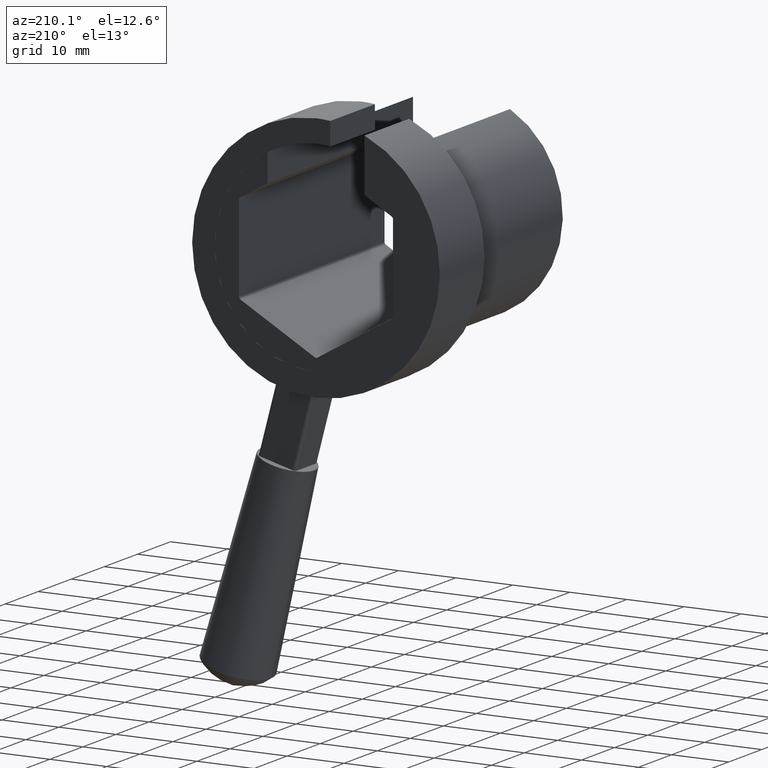
[diagram: clean part render]
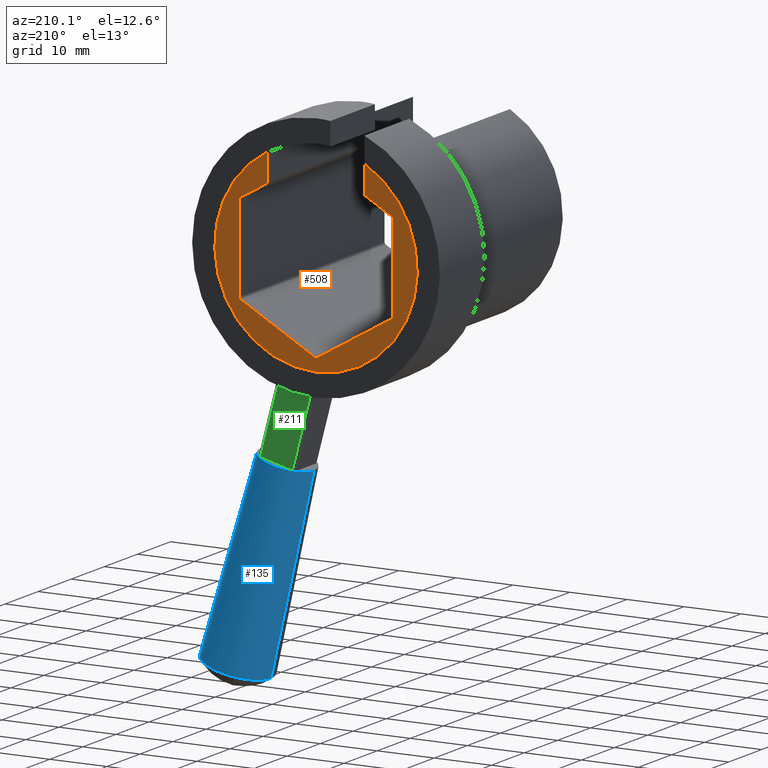
[diagram: same view with three faces highlighted in distinct colors, each labeled with its STEP entity id]
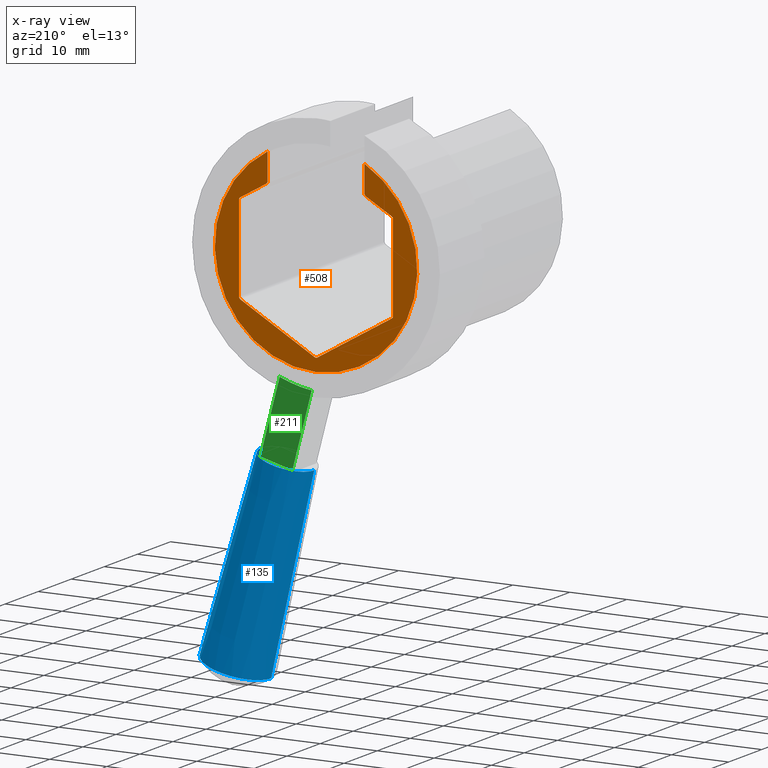
[diagram: x-ray of the same camera — body ghosted, the three highlighted faces saturated]
A machine part, auxiliary view with three faces highlighted in distinct colors.
The next image is the same camera in x-ray (body ghosted, the three faces saturated) — at least one of them is partly hidden behind the body in this view.
Their STEP definitions:

[orange] entity #508 — the highlighted planar face has unit normal (0, 1, 0).
#6 = VERTEX_POINT ( 'NONE', #386 ) ;
#15 = EDGE_CURVE ( 'NONE', #17, #6, #327, .T. ) ;
#17 = VERTEX_POINT ( 'NONE', #322 ) ;
#107 = EDGE_CURVE ( 'NONE', #108, #17, #651, .T. ) ;
#108 = VERTEX_POINT ( 'NONE', #646 ) ;
#288 = EDGE_CURVE ( 'NONE', #289, #108, #816, .T. ) ;
#289 = VERTEX_POINT ( 'NONE', #812 ) ;
#294 = EDGE_CURVE ( 'NONE', #487, #295, #847, .T. ) ;
#295 = VERTEX_POINT ( 'NONE', #842 ) ;
#296 = ORIENTED_EDGE ( 'NONE', *, *, #297, .T. ) ;
#297 = EDGE_CURVE ( 'NONE', #295, #298, #841, .T. ) ;
#298 = VERTEX_POINT ( 'NONE', #869 ) ;
#299 = ORIENTED_EDGE ( 'NONE', *, *, #300, .T. ) ;
#300 = EDGE_CURVE ( 'NONE', #298, #301, #868, .T. ) ;
#301 = VERTEX_POINT ( 'NONE', #863 ) ;
#302 = ORIENTED_EDGE ( 'NONE', *, *, #303, .T. ) ;
#303 = EDGE_CURVE ( 'NONE', #301, #468, #862, .T. ) ;
#322 = CARTESIAN_POINT ( 'NONE',  ( 0.0000000000000000000, 44.00000000000000000, -17.75000000000000000 ) ) ;
#323 = DIRECTION ( 'NONE',  ( 0.0000000000000000000, 0.0000000000000000000, 1.000000000000000000 ) ) ;
#324 = DIRECTION ( 'NONE',  ( 0.0000000000000000000, 1.000000000000000000, 0.0000000000000000000 ) ) ;
#325 = CARTESIAN_POINT ( 'NONE',  ( 0.0000000000000000000, 44.00000000000000000, 0.0000000000000000000 ) ) ;
#326 = AXIS2_PLACEMENT_3D ( 'NONE', #325, #324, #323 ) ;
#327 = CIRCLE ( 'NONE', #326, 17.75000000000000000 ) ;
#360 = EDGE_CURVE ( 'NONE', #522, #361, #1146, .T. ) ;
#361 = VERTEX_POINT ( 'NONE', #1052 ) ;
#362 = ORIENTED_EDGE ( 'NONE', *, *, #363, .T. ) ;
#363 = EDGE_CURVE ( 'NONE', #361, #373, #1141, .T. ) ;
#373 = VERTEX_POINT ( 'NONE', #1039 ) ;
#374 = ORIENTED_EDGE ( 'NONE', *, *, #375, .T. ) ;
#375 = EDGE_CURVE ( 'NONE', #373, #487, #1046, .T. ) ;
#386 = CARTESIAN_POINT ( 'NONE',  ( -8.499999999999998200, 44.00000000000000000, 15.58244204224742000 ) ) ;
#450 = ORIENTED_EDGE ( 'NONE', *, *, #451, .T. ) ;
#451 = EDGE_CURVE ( 'NONE', #471, #452, #1166, .T. ) ;
#452 = VERTEX_POINT ( 'NONE', #1162 ) ;
#453 = ORIENTED_EDGE ( 'NONE', *, *, #454, .T. ) ;
#454 = EDGE_CURVE ( 'NONE', #452, #512, #1161, .T. ) ;
#468 = VERTEX_POINT ( 'NONE', #1261 ) ;
#469 = ORIENTED_EDGE ( 'NONE', *, *, #470, .T. ) ;
#470 = EDGE_CURVE ( 'NONE', #468, #471, #1283, .T. ) ;
#471 = VERTEX_POINT ( 'NONE', #1215 ) ;
#487 = VERTEX_POINT ( 'NONE', #1282 ) ;
#488 = ORIENTED_EDGE ( 'NONE', *, *, #294, .T. ) ;
#491 = VERTEX_POINT ( 'NONE', #1250 ) ;
#494 = EDGE_CURVE ( 'NONE', #6, #491, #1249, .T. ) ;
#508 = ADVANCED_FACE ( 'NONE', ( #1229 ), #1228, .T. ) ;
#509 = EDGE_LOOP ( 'NONE', ( #510, #514, #516, #517, #518, #519, #520, #523, #362, #374, #488, #296, #299, #302, #469, #450, #453 ) ) ;
#510 = ORIENTED_EDGE ( 'NONE', *, *, #511, .T. ) ;
#511 = EDGE_CURVE ( 'NONE', #512, #513, #1324, .T. ) ;
#512 = VERTEX_POINT ( 'NONE', #1320 ) ;
#513 = VERTEX_POINT ( 'NONE', #1319 ) ;
#514 = ORIENTED_EDGE ( 'NONE', *, *, #515, .T. ) ;
#515 = EDGE_CURVE ( 'NONE', #513, #289, #1318, .T. ) ;
#516 = ORIENTED_EDGE ( 'NONE', *, *, #288, .T. ) ;
#517 = ORIENTED_EDGE ( 'NONE', *, *, #107, .T. ) ;
#518 = ORIENTED_EDGE ( 'NONE', *, *, #15, .T. ) ;
#519 = ORIENTED_EDGE ( 'NONE', *, *, #494, .T. ) ;
#520 = ORIENTED_EDGE ( 'NONE', *, *, #521, .T. ) ;
#521 = EDGE_CURVE ( 'NONE', #491, #522, #1340, .T. ) ;
#522 = VERTEX_POINT ( 'NONE', #1335 ) ;
#523 = ORIENTED_EDGE ( 'NONE', *, *, #360, .T. ) ;
#646 = CARTESIAN_POINT ( 'NONE',  ( 8.499999999999998200, 44.00000000000000000, 15.58244204224742000 ) ) ;
#647 = DIRECTION ( 'NONE',  ( 0.0000000000000000000, 0.0000000000000000000, 1.000000000000000000 ) ) ;
#648 = DIRECTION ( 'NONE',  ( 0.0000000000000000000, 1.000000000000000000, 0.0000000000000000000 ) ) ;
#649 = CARTESIAN_POINT ( 'NONE',  ( 0.0000000000000000000, 44.00000000000000000, 0.0000000000000000000 ) ) ;
#650 = AXIS2_PLACEMENT_3D ( 'NONE', #649, #648, #647 ) ;
#651 = CIRCLE ( 'NONE', #650, 17.75000000000000000 ) ;
#812 = CARTESIAN_POINT ( 'NONE',  ( 8.500000000000000000, 44.00000000000000000, 10.96965511460289600 ) ) ;
#813 = DIRECTION ( 'NONE',  ( -3.405188617868360800E-016, 0.0000000000000000000, 1.000000000000000000 ) ) ;
#814 = VECTOR ( 'NONE', #813, 1000.000000000000000 ) ;
#815 = CARTESIAN_POINT ( 'NONE',  ( 8.500000000000000000, 44.00000000000000000, 10.48808848170151500 ) ) ;
#816 = LINE ( 'NONE', #815, #814 ) ;
#841 = LINE ( 'NONE', #872, #871 ) ;
#842 = CARTESIAN_POINT ( 'NONE',  ( -13.25000000000000200, 44.00000000000000000, -7.938566201357353700 ) ) ;
#843 = DIRECTION ( 'NONE',  ( 0.0000000000000000000, 0.0000000000000000000, 1.000000000000000000 ) ) ;
#844 = DIRECTION ( 'NONE',  ( 0.0000000000000000000, -1.000000000000000000, 0.0000000000000000000 ) ) ;
#845 = CARTESIAN_POINT ( 'NONE',  ( -13.00000000000000200, 44.00000000000000000, -7.505553499465134100 ) ) ;
#846 = AXIS2_PLACEMENT_3D ( 'NONE', #845, #844, #843 ) ;
#847 = CIRCLE ( 'NONE', #846, 0.5000000000000004400 ) ;
#859 = DIRECTION ( 'NONE',  ( 0.8660254037844384900, 0.0000000000000000000, 0.5000000000000002200 ) ) ;
#860 = VECTOR ( 'NONE', #859, 1000.000000000000100 ) ;
#861 = CARTESIAN_POINT ( 'NONE',  ( -2.823115543930596100E-015, 44.00000000000000000, -15.58845726811989600 ) ) ;
#862 = LINE ( 'NONE', #861, #860 ) ;
#863 = CARTESIAN_POINT ( 'NONE',  ( 0.2499999999999977200, 44.00000000000000000, -15.44411970082249000 ) ) ;
#864 = DIRECTION ( 'NONE',  ( 7.105427357600995500E-015, 0.0000000000000000000, 1.000000000000000000 ) ) ;
#865 = DIRECTION ( 'NONE',  ( 0.0000000000000000000, -1.000000000000000000, 0.0000000000000000000 ) ) ;
#866 = CARTESIAN_POINT ( 'NONE',  ( -1.951563910473908000E-015, 44.00000000000000000, -15.01110699893027000 ) ) ;
#867 = AXIS2_PLACEMENT_3D ( 'NONE', #866, #865, #864 ) ;
#868 = CIRCLE ( 'NONE', #867, 0.5000000000000004400 ) ;
#869 = CARTESIAN_POINT ( 'NONE',  ( -0.2500000000000002200, 44.00000000000000000, -15.44411970082249000 ) ) ;
#870 = DIRECTION ( 'NONE',  ( 0.8660254037844386000, 0.0000000000000000000, -0.5000000000000001100 ) ) ;
#871 = VECTOR ( 'NONE', #870, 1000.000000000000000 ) ;
#872 = CARTESIAN_POINT ( 'NONE',  ( -13.50000000000000200, 44.00000000000000000, -7.794228634059947100 ) ) ;
#1036 = DIRECTION ( 'NONE',  ( 0.0000000000000000000, 0.0000000000000000000, 1.000000000000000000 ) ) ;
#1037 = DIRECTION ( 'NONE',  ( 0.0000000000000000000, -1.000000000000000000, 0.0000000000000000000 ) ) ;
#1038 = CARTESIAN_POINT ( 'NONE',  ( -13.00000000000000200, 44.00000000000000000, 7.505553499465138500 ) ) ;
#1039 = CARTESIAN_POINT ( 'NONE',  ( -13.50000000000000200, 44.00000000000000000, 7.505553499465138500 ) ) ;
#1044 = DIRECTION ( 'NONE',  ( 0.0000000000000000000, 0.0000000000000000000, -1.000000000000000000 ) ) ;
#1045 = CARTESIAN_POINT ( 'NONE',  ( -13.50000000000000200, 44.00000000000000000, 7.794228634059950700 ) ) ;
#1046 = LINE ( 'NONE', #1045, #1150 ) ;
#1047 = DIRECTION ( 'NONE',  ( -0.8660254037844386000, 0.0000000000000000000, -0.5000000000000001100 ) ) ;
#1052 = CARTESIAN_POINT ( 'NONE',  ( -13.25000000000000400, 44.00000000000000000, 7.938566201357355500 ) ) ;
#1083 = DIRECTION ( 'NONE',  ( 0.0000000000000000000, 0.0000000000000000000, 1.000000000000000000 ) ) ;
#1084 = DIRECTION ( 'NONE',  ( 0.0000000000000000000, -1.000000000000000000, 0.0000000000000000000 ) ) ;
#1085 = CARTESIAN_POINT ( 'NONE',  ( 12.99999999999999600, 44.00000000000000000, 7.505553499465142900 ) ) ;
#1098 = CARTESIAN_POINT ( 'NONE',  ( 1.791772253212694700E-015, 44.00000000000000000, 15.58845726811990100 ) ) ;
#1099 = VECTOR ( 'NONE', #1047, 1000.000000000000100 ) ;
#1140 = AXIS2_PLACEMENT_3D ( 'NONE', #1038, #1037, #1036 ) ;
#1141 = CIRCLE ( 'NONE', #1140, 0.4999999999999995600 ) ;
#1146 = LINE ( 'NONE', #1098, #1099 ) ;
#1150 = VECTOR ( 'NONE', #1044, 1000.000000000000000 ) ;
#1160 = AXIS2_PLACEMENT_3D ( 'NONE', #1085, #1084, #1083 ) ;
#1161 = CIRCLE ( 'NONE', #1160, 0.5000000000000004400 ) ;
#1162 = CARTESIAN_POINT ( 'NONE',  ( 13.49999999999999600, 44.00000000000000000, 7.505553499465138500 ) ) ;
#1163 = DIRECTION ( 'NONE',  ( -1.112825628694192100E-016, 0.0000000000000000000, 1.000000000000000000 ) ) ;
#1164 = VECTOR ( 'NONE', #1163, 1000.000000000000000 ) ;
#1165 = CARTESIAN_POINT ( 'NONE',  ( 13.49999999999999800, 44.00000000000000000, -7.794228634059942700 ) ) ;
#1166 = LINE ( 'NONE', #1165, #1164 ) ;
#1214 = AXIS2_PLACEMENT_3D ( 'NONE', #1218, #1217, #1216 ) ;
#1215 = CARTESIAN_POINT ( 'NONE',  ( 13.49999999999999800, 44.00000000000000000, -7.505553499465129600 ) ) ;
#1216 = DIRECTION ( 'NONE',  ( 0.0000000000000000000, 0.0000000000000000000, 1.000000000000000000 ) ) ;
#1217 = DIRECTION ( 'NONE',  ( 0.0000000000000000000, -1.000000000000000000, 0.0000000000000000000 ) ) ;
#1218 = CARTESIAN_POINT ( 'NONE',  ( 12.99999999999999800, 44.00000000000000000, -7.505553499465129600 ) ) ;
#1224 = DIRECTION ( 'NONE',  ( 0.0000000000000000000, 0.0000000000000000000, 1.000000000000000000 ) ) ;
#1225 = DIRECTION ( 'NONE',  ( 0.0000000000000000000, 1.000000000000000000, 0.0000000000000000000 ) ) ;
#1226 = CARTESIAN_POINT ( 'NONE',  ( 0.0000000000000000000, 44.00000000000000000, 0.0000000000000000000 ) ) ;
#1227 = AXIS2_PLACEMENT_3D ( 'NONE', #1226, #1225, #1224 ) ;
#1228 = PLANE ( 'NONE',  #1227 ) ;
#1229 = FACE_OUTER_BOUND ( 'NONE', #509, .T. ) ;
#1246 = DIRECTION ( 'NONE',  ( -3.405188617868360800E-016, 0.0000000000000000000, -1.000000000000000000 ) ) ;
#1247 = VECTOR ( 'NONE', #1246, 1000.000000000000000 ) ;
#1248 = CARTESIAN_POINT ( 'NONE',  ( -8.500000000000000000, 44.00000000000000000, 10.48808848170151500 ) ) ;
#1249 = LINE ( 'NONE', #1248, #1247 ) ;
#1250 = CARTESIAN_POINT ( 'NONE',  ( -8.500000000000000000, 44.00000000000000000, 10.96965511460289400 ) ) ;
#1261 = CARTESIAN_POINT ( 'NONE',  ( 13.25000000000000000, 44.00000000000000000, -7.938566201357348400 ) ) ;
#1282 = CARTESIAN_POINT ( 'NONE',  ( -13.50000000000000200, 44.00000000000000000, -7.505553499465130500 ) ) ;
#1283 = CIRCLE ( 'NONE', #1214, 0.4999999999999995600 ) ;
#1314 = DIRECTION ( 'NONE',  ( 0.0000000000000000000, 0.0000000000000000000, 1.000000000000000000 ) ) ;
#1315 = DIRECTION ( 'NONE',  ( 0.0000000000000000000, 1.000000000000000000, 0.0000000000000000000 ) ) ;
#1316 = CARTESIAN_POINT ( 'NONE',  ( 9.000000000000001800, 44.00000000000000000, 10.96965511460289600 ) ) ;
#1317 = AXIS2_PLACEMENT_3D ( 'NONE', #1316, #1315, #1314 ) ;
#1318 = CIRCLE ( 'NONE', #1317, 0.5000000000000004400 ) ;
#1319 = CARTESIAN_POINT ( 'NONE',  ( 8.750000000000000000, 44.00000000000000000, 10.53664241271067700 ) ) ;
#1320 = CARTESIAN_POINT ( 'NONE',  ( 13.24999999999999600, 44.00000000000000000, 7.938566201357362600 ) ) ;
#1321 = DIRECTION ( 'NONE',  ( -0.8660254037844386000, 0.0000000000000000000, 0.5000000000000001100 ) ) ;
#1322 = VECTOR ( 'NONE', #1321, 1000.000000000000100 ) ;
#1323 = CARTESIAN_POINT ( 'NONE',  ( 13.49999999999999600, 44.00000000000000000, 7.794228634059956000 ) ) ;
#1324 = LINE ( 'NONE', #1323, #1322 ) ;
#1335 = CARTESIAN_POINT ( 'NONE',  ( -8.750000000000001800, 44.00000000000000000, 10.53664241271067300 ) ) ;
#1336 = DIRECTION ( 'NONE',  ( 0.0000000000000000000, 0.0000000000000000000, 1.000000000000000000 ) ) ;
#1337 = DIRECTION ( 'NONE',  ( 0.0000000000000000000, 1.000000000000000000, 0.0000000000000000000 ) ) ;
#1338 = CARTESIAN_POINT ( 'NONE',  ( -9.000000000000001800, 44.00000000000000000, 10.96965511460289400 ) ) ;
#1339 = AXIS2_PLACEMENT_3D ( 'NONE', #1338, #1337, #1336 ) ;
#1340 = CIRCLE ( 'NONE', #1339, 0.5000000000000004400 ) ;

[blue] entity #135 — the highlighted conical surface has half-angle 2 deg.
#125 = EDGE_CURVE ( 'NONE', #136, #230, #626, .T. ) ;
#135 = ADVANCED_FACE ( 'NONE', ( #765 ), #763, .T. ) ;
#136 = VERTEX_POINT ( 'NONE', #759 ) ;
#195 = EDGE_CURVE ( 'NONE', #230, #196, #807, .T. ) ;
#196 = VERTEX_POINT ( 'NONE', #802 ) ;
#198 = EDGE_LOOP ( 'NONE', ( #223, #227, #229, #221 ) ) ;
#221 = ORIENTED_EDGE ( 'NONE', *, *, #125, .F. ) ;
#223 = ORIENTED_EDGE ( 'NONE', *, *, #224, .T. ) ;
#224 = EDGE_CURVE ( 'NONE', #136, #225, #883, .T. ) ;
#225 = VERTEX_POINT ( 'NONE', #878 ) ;
#227 = ORIENTED_EDGE ( 'NONE', *, *, #228, .T. ) ;
#228 = EDGE_CURVE ( 'NONE', #225, #196, #840, .T. ) ;
#229 = ORIENTED_EDGE ( 'NONE', *, *, #195, .F. ) ;
#230 = VERTEX_POINT ( 'NONE', #836 ) ;
#623 = DIRECTION ( 'NONE',  ( 0.2220754400602289500, 0.0000000000000000000, -0.9750294861808311800 ) ) ;
#624 = VECTOR ( 'NONE', #623, 1000.000000000000000 ) ;
#625 = CARTESIAN_POINT ( 'NONE',  ( 4.236518378541201300, 37.24899999999992400, -34.78442197346800000 ) ) ;
#626 = LINE ( 'NONE', #625, #624 ) ;
#759 = CARTESIAN_POINT ( 'NONE',  ( 4.236518378541201300, 37.24899999999992400, -34.78442197346800000 ) ) ;
#760 = DIRECTION ( 'NONE',  ( -0.9666852034741765200, 0.0000000000000000000, -0.2559681960402308000 ) ) ;
#761 = DIRECTION ( 'NONE',  ( 0.2559681960402310200, 0.0000000000000000000, -0.9666852034741764100 ) ) ;
#762 = AXIS2_PLACEMENT_3D ( 'NONE', #764, #761, #760 ) ;
#763 = CONICAL_SURFACE ( 'NONE', #762, 4.808326112068525200, 0.03490658503988666700 ) ;
#764 = CARTESIAN_POINT ( 'NONE',  ( 8.884656084556359800, 37.24899999999992400, -33.55364341258867700 ) ) ;
#765 = FACE_OUTER_BOUND ( 'NONE', #198, .T. ) ;
#802 = CARTESIAN_POINT ( 'NONE',  ( 23.38346375543394400, 37.24899999999992400, -64.88624915321261700 ) ) ;
#803 = DIRECTION ( 'NONE',  ( -0.9666852034741761900, 0.0000000000000000000, -0.2559681960402316300 ) ) ;
#804 = DIRECTION ( 'NONE',  ( 0.2559681960402310200, 0.0000000000000000000, -0.9666852034741764100 ) ) ;
#805 = CARTESIAN_POINT ( 'NONE',  ( 17.58757474992421500, 37.24899999999992400, -66.42094033071067800 ) ) ;
#806 = AXIS2_PLACEMENT_3D ( 'NONE', #805, #804, #803 ) ;
#807 = CIRCLE ( 'NONE', #806, 5.995632274787952900 ) ;
#836 = CARTESIAN_POINT ( 'NONE',  ( 11.79168574441448500, 37.24899999999992400, -67.95563150820873900 ) ) ;
#837 = DIRECTION ( 'NONE',  ( 0.2895490942022360700, 4.273955692857151800E-018, -0.9571631637535289400 ) ) ;
#838 = VECTOR ( 'NONE', #837, 999.9999999999998900 ) ;
#839 = CARTESIAN_POINT ( 'NONE',  ( 13.53279379057151900, 37.24899999999992400, -32.32286485170936200 ) ) ;
#840 = LINE ( 'NONE', #839, #838 ) ;
#878 = CARTESIAN_POINT ( 'NONE',  ( 13.53279379057151900, 37.24899999999992400, -32.32286485170936200 ) ) ;
#879 = DIRECTION ( 'NONE',  ( -0.9666852034741765200, 0.0000000000000000000, -0.2559681960402308000 ) ) ;
#880 = DIRECTION ( 'NONE',  ( 0.2559681960402310200, 0.0000000000000000000, -0.9666852034741764100 ) ) ;
#881 = CARTESIAN_POINT ( 'NONE',  ( 8.884656084556359800, 37.24899999999992400, -33.55364341258867700 ) ) ;
#882 = AXIS2_PLACEMENT_3D ( 'NONE', #881, #880, #879 ) ;
#883 = CIRCLE ( 'NONE', #882, 4.808326112068525200 ) ;

[green] entity #211 — the highlighted planar face has unit normal (-0, -1, 0).
#2 = ORIENTED_EDGE ( 'NONE', *, *, #18, .T. ) ;
#18 = EDGE_CURVE ( 'NONE', #33, #216, #321, .T. ) ;
#32 = EDGE_CURVE ( 'NONE', #33, #204, #554, .T. ) ;
#33 = VERTEX_POINT ( 'NONE', #549 ) ;
#35 = ORIENTED_EDGE ( 'NONE', *, *, #32, .F. ) ;
#202 = ORIENTED_EDGE ( 'NONE', *, *, #203, .T. ) ;
#203 = EDGE_CURVE ( 'NONE', #215, #204, #796, .T. ) ;
#204 = VERTEX_POINT ( 'NONE', #792 ) ;
#211 = ADVANCED_FACE ( 'NONE', ( #963 ), #962, .F. ) ;
#212 = EDGE_LOOP ( 'NONE', ( #213, #202, #35, #2 ) ) ;
#213 = ORIENTED_EDGE ( 'NONE', *, *, #214, .F. ) ;
#214 = EDGE_CURVE ( 'NONE', #215, #216, #957, .T. ) ;
#215 = VERTEX_POINT ( 'NONE', #953 ) ;
#216 = VERTEX_POINT ( 'NONE', #952 ) ;
#318 = DIRECTION ( 'NONE',  ( 0.2559681960402314100, -1.386669559958809500E-032, -0.9666852034741763000 ) ) ;
#319 = VECTOR ( 'NONE', #318, 1000.000000000000000 ) ;
#320 = CARTESIAN_POINT ( 'NONE',  ( 11.68804317463154200, 40.64900000000000100, -32.81133564407198800 ) ) ;
#321 = LINE ( 'NONE', #320, #319 ) ;
#549 = CARTESIAN_POINT ( 'NONE',  ( 8.310655106533955600, 40.64900000000000100, -20.05634841391226800 ) ) ;
#550 = DIRECTION ( 'NONE',  ( 0.0000000000000000000, 0.0000000000000000000, 1.000000000000000000 ) ) ;
#551 = DIRECTION ( 'NONE',  ( 3.549433057665575700E-033, 1.000000000000000000, -1.340472945720229200E-032 ) ) ;
#552 = CARTESIAN_POINT ( 'NONE',  ( 0.0000000000000000000, 40.64900000000000100, 0.0000000000000000000 ) ) ;
#553 = AXIS2_PLACEMENT_3D ( 'NONE', #552, #551, #550 ) ;
#554 = CIRCLE ( 'NONE', #553, 21.71000000000000100 ) ;
#792 = CARTESIAN_POINT ( 'NONE',  ( 2.703880926383733100, 40.64900000000000100, -21.54096395094561000 ) ) ;
#793 = DIRECTION ( 'NONE',  ( -0.2559681960402314100, 1.386669559958809500E-032, 0.9666852034741763000 ) ) ;
#794 = VECTOR ( 'NONE', #793, 1000.000000000000000 ) ;
#795 = CARTESIAN_POINT ( 'NONE',  ( 6.081268994481321900, 40.64900000000000100, -34.29595118110533000 ) ) ;
#796 = LINE ( 'NONE', #795, #794 ) ;
#952 = CARTESIAN_POINT ( 'NONE',  ( 11.68804317463154200, 40.64900000000000100, -32.81133564407198800 ) ) ;
#953 = CARTESIAN_POINT ( 'NONE',  ( 6.081268994481319200, 40.64900000000000100, -34.29595118110532300 ) ) ;
#954 = DIRECTION ( 'NONE',  ( 0.9666852034741763000, 0.0000000000000000000, 0.2559681960402309700 ) ) ;
#955 = VECTOR ( 'NONE', #954, 1000.000000000000200 ) ;
#956 = CARTESIAN_POINT ( 'NONE',  ( 12.17138577636863100, 40.64900000000000100, -32.68335154605186700 ) ) ;
#957 = LINE ( 'NONE', #956, #955 ) ;
#958 = DIRECTION ( 'NONE',  ( 0.0000000000000000000, -1.340472945720228400E-032, -1.000000000000000000 ) ) ;
#959 = DIRECTION ( 'NONE',  ( -3.549433057665573600E-033, -1.000000000000000000, 1.340472945720228400E-032 ) ) ;
#960 = CARTESIAN_POINT ( 'NONE',  ( 12.17138577636863100, 40.64900000000000100, -32.68335154605186700 ) ) ;
#961 = AXIS2_PLACEMENT_3D ( 'NONE', #960, #959, #958 ) ;
#962 = PLANE ( 'NONE',  #961 ) ;
#963 = FACE_OUTER_BOUND ( 'NONE', #212, .T. ) ;